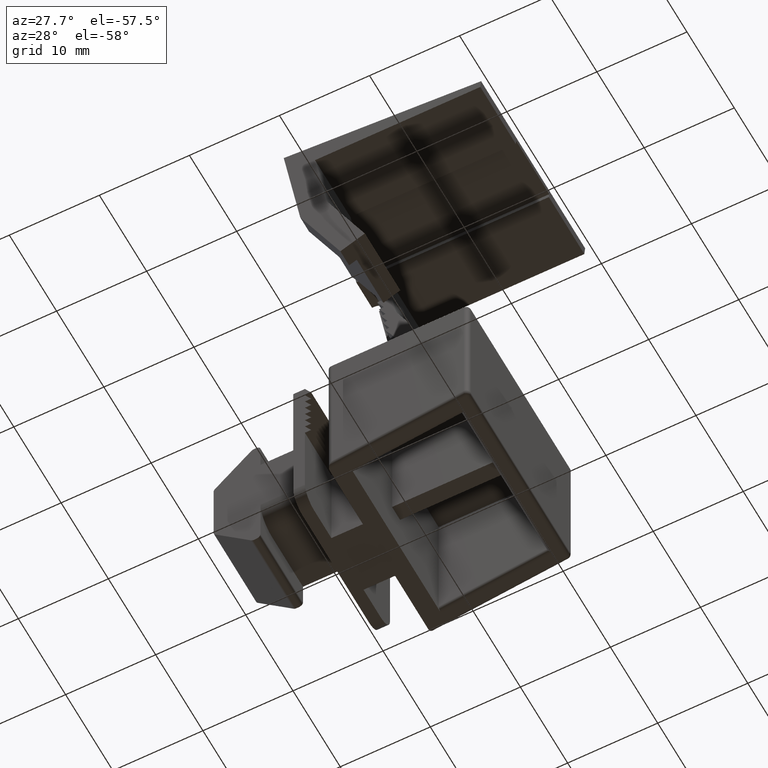
[diagram: clean part render]
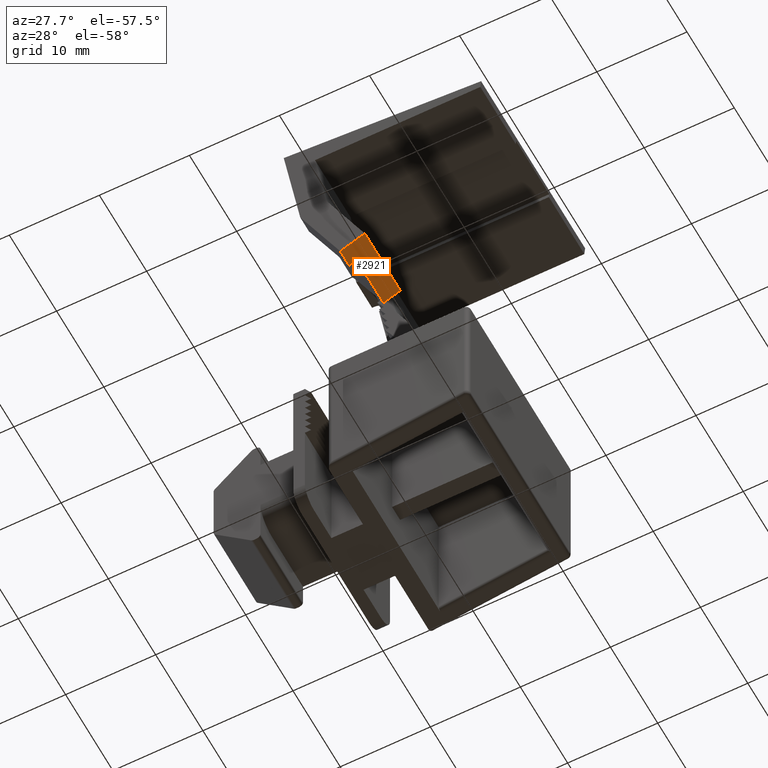
[diagram: same view with one face highlighted and labeled with its STEP entity id]
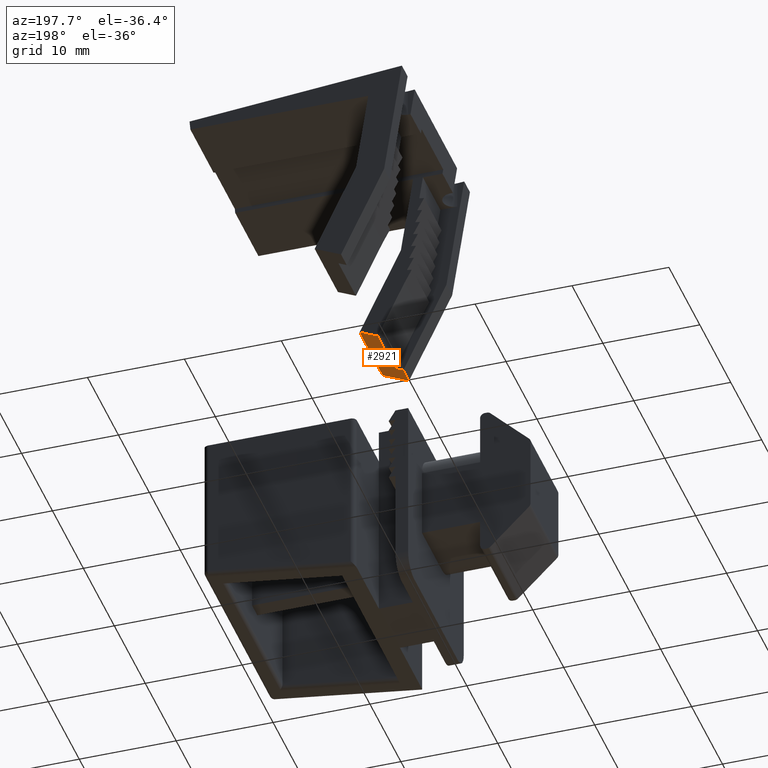
[diagram: same view with one face highlighted and labeled with its STEP entity id]
A machine part, auxiliary view. The second image highlights one B-rep face of the part: STEP entity #2921.
A second angle (auxiliary view) of the same face is appended — the face is thin or edge-on in the first view.
In plain terms, the highlighted planar face has unit normal (0.4265, -0, -0.9045).
Its self-contained STEP definition (entity closure, byte-faithful):
#145=PLANE('',#3116);
#294=FACE_OUTER_BOUND('',#445,.T.);
#445=EDGE_LOOP('',(#2695,#2696,#2697,#2698,#2699,#2700));
#784=LINE('',#4563,#1157);
#829=LINE('',#4649,#1202);
#840=LINE('',#4671,#1213);
#850=LINE('',#4692,#1223);
#852=LINE('',#4696,#1225);
#853=LINE('',#4697,#1226);
#1157=VECTOR('',#3736,5.65);
#1202=VECTOR('',#3811,0.935968330251548);
#1213=VECTOR('',#3828,2.06403166974845);
#1223=VECTOR('',#3846,1.85);
#1225=VECTOR('',#3850,7.5);
#1226=VECTOR('',#3851,3.);
#1464=VERTEX_POINT('',#4560);
#1465=VERTEX_POINT('',#4562);
#1490=VERTEX_POINT('',#4644);
#1499=VERTEX_POINT('',#4669);
#1506=VERTEX_POINT('',#4691);
#1507=VERTEX_POINT('',#4695);
#1844=EDGE_CURVE('',#1465,#1464,#784,.T.);
#1889=EDGE_CURVE('',#1490,#1465,#829,.T.);
#1900=EDGE_CURVE('',#1464,#1499,#840,.T.);
#1910=EDGE_CURVE('',#1506,#1490,#850,.T.);
#1912=EDGE_CURVE('',#1507,#1499,#852,.T.);
#1913=EDGE_CURVE('',#1506,#1507,#853,.T.);
#2695=ORIENTED_EDGE('',*,*,#1844,.T.);
#2696=ORIENTED_EDGE('',*,*,#1900,.T.);
#2697=ORIENTED_EDGE('',*,*,#1912,.F.);
#2698=ORIENTED_EDGE('',*,*,#1913,.F.);
#2699=ORIENTED_EDGE('',*,*,#1910,.T.);
#2700=ORIENTED_EDGE('',*,*,#1889,.T.);
#2921=ADVANCED_FACE('',(#294),#145,.T.);
#3116=AXIS2_PLACEMENT_3D('',#4694,#3848,#3849);
#3736=DIRECTION('',(0.,0.,-1.));
#3811=DIRECTION('',(0.904482058347941,0.426511671735571,0.));
#3828=DIRECTION('',(0.904482058347941,0.426511671735571,0.));
#3846=DIRECTION('',(0.,0.,-1.));
#3848=DIRECTION('center_axis',(0.426511671735571,-0.904482058347941,0.));
#3849=DIRECTION('ref_axis',(0.904482058347941,0.426511671735571,0.));
#3850=DIRECTION('',(0.,0.,-1.));
#3851=DIRECTION('',(0.904482058347941,0.426511671735571,0.));
#4560=CARTESIAN_POINT('',(3.66153331092152,-18.3307524762919,3.5));
#4562=CARTESIAN_POINT('',(3.66153331092152,-18.3307524762919,9.15));
#4563=CARTESIAN_POINT('',(3.66153331092152,-18.3307524762919,0.));
#4644=CARTESIAN_POINT('',(2.81496674902711,-18.7299538935191,9.15));
#4649=CARTESIAN_POINT('',(3.48177042572418,-18.4155202922745,9.15));
#4669=CARTESIAN_POINT('',(5.52841292407093,-17.4504188783124,3.5));
#4671=CARTESIAN_POINT('',(6.2164727136376,-17.125961882849,3.5));
#4691=CARTESIAN_POINT('',(2.81496674902711,-18.7299538935191,11.));
#4692=CARTESIAN_POINT('',(2.81496674902711,-18.7299538935191,0.));
#4694=CARTESIAN_POINT('Origin',(2.81496674902711,-18.7299538935191,0.));
#4695=CARTESIAN_POINT('',(5.52841292407093,-17.4504188783124,11.));
#4696=CARTESIAN_POINT('',(5.52841292407093,-17.4504188783124,0.));
#4697=CARTESIAN_POINT('',(5.52841292407093,-17.4504188783124,11.));